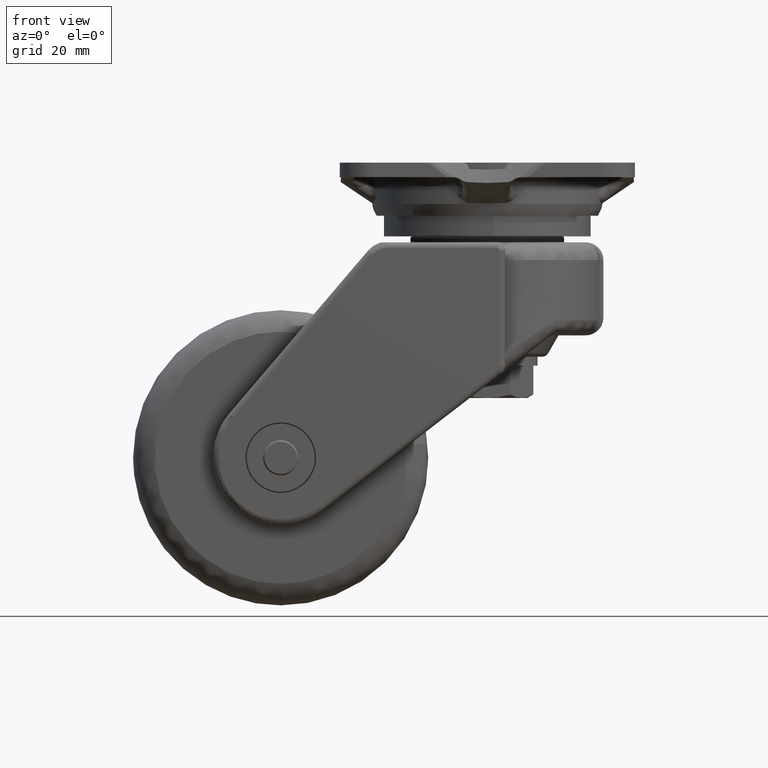
[diagram: clean part render]
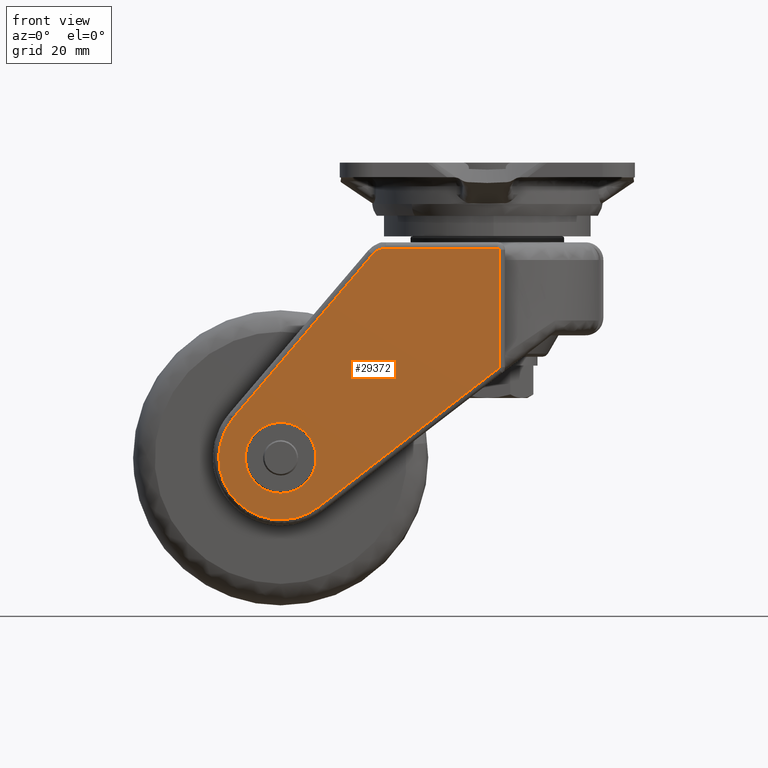
[diagram: same view with one face highlighted and labeled with its STEP entity id]
A machine part, front view. The second image highlights one B-rep face of the part: STEP entity #29372.
In plain terms, the highlighted face is a freeform B-spline surface patch.
Its self-contained STEP definition (entity closure, byte-faithful):
#23130=CARTESIAN_POINT('',(-81.916114316339431,-43.0,-80.583589183912210));
#23131=VERTEX_POINT('',#23130);
#23137=CARTESIAN_POINT('',(-70.0,-43.0,-94.0));
#23138=VERTEX_POINT('',#23137);
#23139=CARTESIAN_POINT('',(-81.916114316339431,-43.0,-80.583589183912210));
#23140=CARTESIAN_POINT('',(-82.0,-43.0,-81.289310563968201));
#23141=CARTESIAN_POINT('',(-82.0,-43.0,-82.0));
#23142=CARTESIAN_POINT('',(-82.0,-42.999999999999993,-94.000000000000014));
#23143=CARTESIAN_POINT('',(-70.0,-43.0,-94.0));
#23151=(BOUNDED_CURVE()B_SPLINE_CURVE(2,(#23139,#23140,#23141,#23142,#23143),.UNSPECIFIED.,.F.,.U.)B_SPLINE_CURVE_WITH_KNOTS((3,2,3),(0.229562473509781,0.250000000000000,0.500000000000000),.UNSPECIFIED.)CURVE()GEOMETRIC_REPRESENTATION_ITEM()RATIONAL_B_SPLINE_CURVE((0.956026754176394,0.976055948326778,1.0,0.707106781186548,1.0))REPRESENTATION_ITEM(''));
#23152=EDGE_CURVE('',#23131,#23138,#23151,.T.);
#23154=CARTESIAN_POINT('',(-58.022382418954351,-43.0,-82.732582474692066));
#23155=VERTEX_POINT('',#23154);
#23156=CARTESIAN_POINT('',(-70.0,-43.0,-94.0));
#23157=CARTESIAN_POINT('',(-58.711527197648699,-42.999999999999993,-94.0));
#23158=CARTESIAN_POINT('',(-58.022382418954358,-43.0,-82.732582474692066));
#23166=(BOUNDED_CURVE()B_SPLINE_CURVE(2,(#23156,#23157,#23158),.UNSPECIFIED.,.F.,.U.)B_SPLINE_CURVE_WITH_KNOTS((3,3),(0.500000000000000,0.739332962234080),.UNSPECIFIED.)CURVE()GEOMETRIC_REPRESENTATION_ITEM()RATIONAL_B_SPLINE_CURVE((1.0,0.719603993292407,0.976072041656296))REPRESENTATION_ITEM(''));
#23167=EDGE_CURVE('',#23138,#23155,#23166,.T.);
#23241=CARTESIAN_POINT('',(-70.0,-43.0,-70.0));
#23242=VERTEX_POINT('',#23241);
#23243=CARTESIAN_POINT('',(-58.022382418954344,-43.0,-82.732582474692066));
#23244=CARTESIAN_POINT('',(-58.0,-43.000000000000014,-82.366633159857614));
#23245=CARTESIAN_POINT('',(-58.000000000000007,-43.0,-82.0));
#23246=CARTESIAN_POINT('',(-58.0,-42.999999999999993,-70.0));
#23247=CARTESIAN_POINT('',(-70.0,-43.0,-70.0));
#23255=(BOUNDED_CURVE()B_SPLINE_CURVE(2,(#23243,#23244,#23245,#23246,#23247),.UNSPECIFIED.,.F.,.U.)B_SPLINE_CURVE_WITH_KNOTS((3,2,3),(0.739332962234081,0.750000000000000,1.0),.UNSPECIFIED.)CURVE()GEOMETRIC_REPRESENTATION_ITEM()RATIONAL_B_SPLINE_CURVE((0.976072041656297,0.987502787894141,1.0,0.707106781186548,1.0))REPRESENTATION_ITEM(''));
#23256=EDGE_CURVE('',#23155,#23242,#23255,.T.);
#23258=CARTESIAN_POINT('',(-70.0,-43.0,-70.0));
#23259=CARTESIAN_POINT('',(-80.658094311044067,-42.999999999999993,-70.0));
#23260=CARTESIAN_POINT('',(-81.916114316339431,-43.0,-80.583589183912210));
#23268=(BOUNDED_CURVE()B_SPLINE_CURVE(2,(#23258,#23259,#23260),.UNSPECIFIED.,.F.,.U.)B_SPLINE_CURVE_WITH_KNOTS((3,3),(0.0,0.229562473509781),.UNSPECIFIED.)CURVE()GEOMETRIC_REPRESENTATION_ITEM()RATIONAL_B_SPLINE_CURVE((1.0,0.731050832859769,0.956026754176394))REPRESENTATION_ITEM(''));
#23269=EDGE_CURVE('',#23242,#23131,#23268,.T.);
#28729=CARTESIAN_POINT('',(-38.873423274373799,-43.0,-13.107900818449700));
#28730=VERTEX_POINT('',#28729);
#28753=CARTESIAN_POINT('',(-85.982229457750691,-43.0,-68.377652861573083));
#28754=VERTEX_POINT('',#28753);
#28768=CARTESIAN_POINT('',(-38.873423274373799,-43.0,-13.107900818449700));
#28769=CARTESIAN_POINT('',(-85.982229457750691,-43.0,-68.377652861573083));
#28770=QUASI_UNIFORM_CURVE('',1,(#28768,#28769),.UNSPECIFIED.,.F.,.U.);
#28771=EDGE_CURVE('',#28730,#28754,#28770,.T.);
#28801=CARTESIAN_POINT('',(-57.190634291903400,-43.0,-98.640917948125292));
#28802=VERTEX_POINT('',#28801);
#28818=CARTESIAN_POINT('',(-85.982229457750663,-43.0,-68.377652861573111));
#28819=CARTESIAN_POINT('',(-98.251044219155105,-43.000000000000007,-82.771869269278582));
#28820=CARTESIAN_POINT('',(-85.214567674377079,-43.0,-96.474699668103682));
#28821=CARTESIAN_POINT('',(-72.178091129599039,-43.000000000000007,-110.177530066928780));
#28822=CARTESIAN_POINT('',(-57.190634291903400,-43.0,-98.640917948125292));
#28830=(BOUNDED_CURVE()B_SPLINE_CURVE(2,(#28818,#28819,#28820,#28821,#28822),.UNSPECIFIED.,.F.,.U.)B_SPLINE_CURVE_WITH_KNOTS((3,2,3),(0.0,0.500000000000000,1.0),.UNSPECIFIED.)CURVE()GEOMETRIC_REPRESENTATION_ITEM()RATIONAL_B_SPLINE_CURVE((1.0,0.743058068117981,1.0,0.743058068117981,1.0))REPRESENTATION_ITEM(''));
#28831=EDGE_CURVE('',#28754,#28802,#28830,.T.);
#28869=CARTESIAN_POINT('',(-34.307071999999962,-43.0,-11.0));
#28870=VERTEX_POINT('',#28869);
#28900=CARTESIAN_POINT('',(-34.307071999999962,-43.0,-11.0));
#28901=CARTESIAN_POINT('',(-37.076768011271561,-43.000000000000007,-11.000000000000002));
#28902=CARTESIAN_POINT('',(-38.873423274373792,-43.0,-13.107900818449711));
#28910=(BOUNDED_CURVE()B_SPLINE_CURVE(2,(#28900,#28901,#28902),.UNSPECIFIED.,.F.,.U.)CURVE()GEOMETRIC_REPRESENTATION_ITEM()QUASI_UNIFORM_CURVE()RATIONAL_B_SPLINE_CURVE((1.0,0.907932595770481,1.0))REPRESENTATION_ITEM(''));
#28911=EDGE_CURVE('',#28870,#28730,#28910,.T.);
#28932=CARTESIAN_POINT('',(3.804985602734515,-43.0,-51.689465190993303));
#28933=VERTEX_POINT('',#28932);
#28947=CARTESIAN_POINT('',(-57.190634291903400,-43.0,-98.640917948125292));
#28948=CARTESIAN_POINT('',(3.804985602734515,-43.0,-51.689465190993303));
#28949=QUASI_UNIFORM_CURVE('',1,(#28947,#28948),.UNSPECIFIED.,.F.,.U.);
#28950=EDGE_CURVE('',#28802,#28933,#28949,.T.);
#28975=CARTESIAN_POINT('',(3.500000000000000,-43.0,-11.0));
#28976=VERTEX_POINT('',#28975);
#28998=CARTESIAN_POINT('',(3.500000000000000,-43.0,-11.0));
#28999=CARTESIAN_POINT('',(-34.307071999999962,-43.0,-11.0));
#29000=QUASI_UNIFORM_CURVE('',1,(#28998,#28999),.UNSPECIFIED.,.F.,.U.);
#29001=EDGE_CURVE('',#28976,#28870,#29000,.T.);
#29041=CARTESIAN_POINT('',(4.0,-43.0,-51.293252000000003));
#29042=VERTEX_POINT('',#29041);
#29056=CARTESIAN_POINT('',(3.804985602734515,-43.0,-51.689465190993303));
#29057=CARTESIAN_POINT('',(4.000000338713574,-43.0,-51.539351651628301));
#29058=CARTESIAN_POINT('',(4.0,-43.0,-51.293252000000003));
#29066=(BOUNDED_CURVE()B_SPLINE_CURVE(2,(#29056,#29057,#29058),.UNSPECIFIED.,.F.,.U.)CURVE()GEOMETRIC_REPRESENTATION_ITEM()QUASI_UNIFORM_CURVE()RATIONAL_B_SPLINE_CURVE((1.0,0.897209521409223,1.0))REPRESENTATION_ITEM(''));
#29067=EDGE_CURVE('',#28933,#29042,#29066,.T.);
#29129=CARTESIAN_POINT('',(4.0,-43.0,-11.500000000000000));
#29130=VERTEX_POINT('',#29129);
#29160=CARTESIAN_POINT('',(4.0,-43.0,-11.500000000000000));
#29161=CARTESIAN_POINT('',(4.000000000000000,-42.999999999999993,-11.0));
#29162=CARTESIAN_POINT('',(3.500000000000000,-43.0,-11.0));
#29170=(BOUNDED_CURVE()B_SPLINE_CURVE(2,(#29160,#29161,#29162),.UNSPECIFIED.,.F.,.U.)CURVE()GEOMETRIC_REPRESENTATION_ITEM()QUASI_UNIFORM_CURVE()RATIONAL_B_SPLINE_CURVE((1.0,0.707106781186548,1.0))REPRESENTATION_ITEM(''));
#29171=EDGE_CURVE('',#29130,#28976,#29170,.T.);
#29197=CARTESIAN_POINT('',(4.0,-43.0,-51.293252000000003));
#29198=CARTESIAN_POINT('',(4.0,-43.0,-11.500000000000000));
#29199=QUASI_UNIFORM_CURVE('',1,(#29197,#29198),.UNSPECIFIED.,.F.,.U.);
#29200=EDGE_CURVE('',#29042,#29130,#29199,.T.);
#29351=CARTESIAN_POINT('',(-95.740123454074791,-43.0,-107.586588257764400));
#29352=CARTESIAN_POINT('',(8.745008483807094,-43.0,-107.586588257764400));
#29353=CARTESIAN_POINT('',(-95.740123454074791,-43.0,-6.405016910592968));
#29354=CARTESIAN_POINT('',(8.745008483807094,-43.0,-6.405016910592968));
#29355=B_SPLINE_SURFACE_WITH_KNOTS('',1,1,((#29351,#29353),(#29352,#29354)),.UNSPECIFIED.,.F.,.F.,.U.,(2,2),(2,2),(0.0,104.485131937881900),(0.0,101.181571347171400),.UNSPECIFIED.);
#29356=ORIENTED_EDGE('',*,*,#28911,.T.);
#29357=ORIENTED_EDGE('',*,*,#28771,.T.);
#29358=ORIENTED_EDGE('',*,*,#28831,.T.);
#29359=ORIENTED_EDGE('',*,*,#28950,.T.);
#29360=ORIENTED_EDGE('',*,*,#29067,.T.);
#29361=ORIENTED_EDGE('',*,*,#29200,.T.);
#29362=ORIENTED_EDGE('',*,*,#29171,.T.);
#29363=ORIENTED_EDGE('',*,*,#29001,.T.);
#29364=EDGE_LOOP('',(#29356,#29357,#29358,#29359,#29360,#29361,#29362,#29363));
#29365=FACE_OUTER_BOUND('',#29364,.T.);
#29366=ORIENTED_EDGE('',*,*,#23167,.F.);
#29367=ORIENTED_EDGE('',*,*,#23152,.F.);
#29368=ORIENTED_EDGE('',*,*,#23269,.F.);
#29369=ORIENTED_EDGE('',*,*,#23256,.F.);
#29370=EDGE_LOOP('',(#29366,#29367,#29368,#29369));
#29371=FACE_BOUND('',#29370,.T.);
#29372=ADVANCED_FACE('',(#29365,#29371),#29355,.T.);